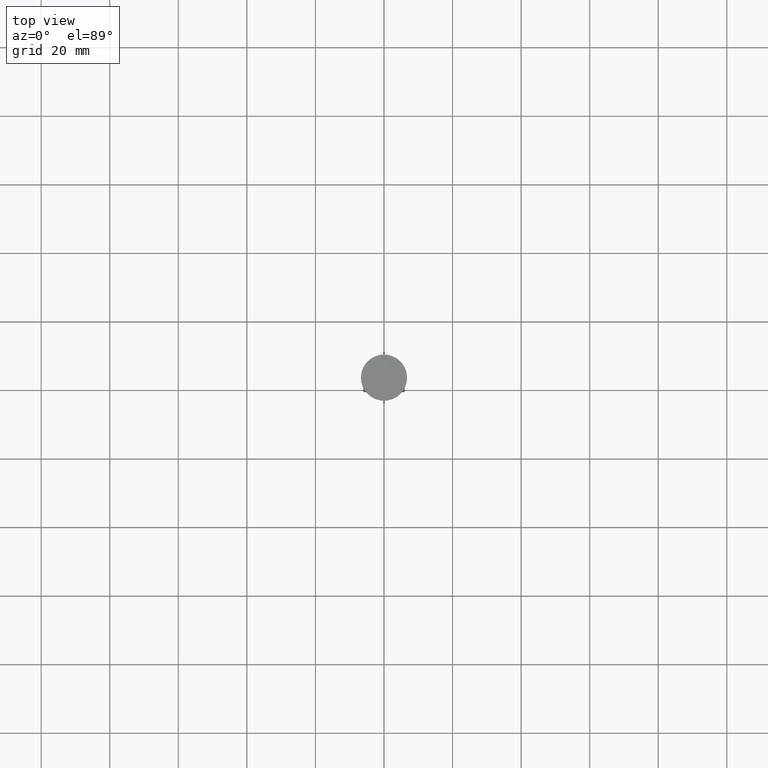
[diagram: clean part render]
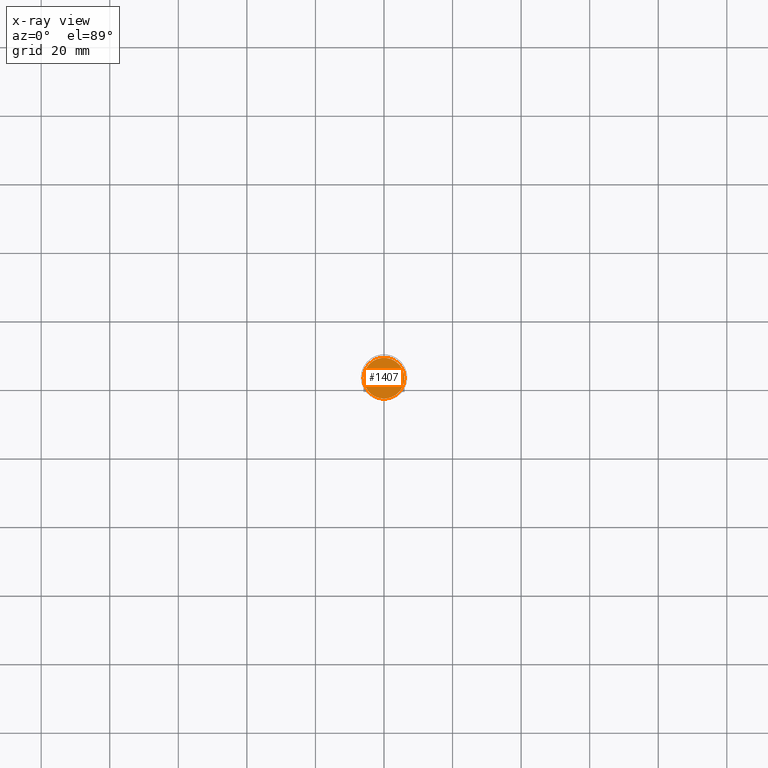
[diagram: x-ray — body ghosted, one internal face saturated and labeled with its STEP entity id]
A machine part, top view, then the same camera in x-ray: the body is ghosted and one INTERNAL B-rep face — a face not visible from any outside direction — is saturated and labeled: STEP entity #1407.
In plain terms, the highlighted planar face has unit normal (0, 0, -1).
Its self-contained STEP definition (entity closure, byte-faithful):
#15 = EDGE_LOOP ( 'NONE', ( #1779, #1756 ) ) ;
#252 = DIRECTION ( 'NONE',  ( -1.000000000000000000, 0.000000000000000000, 0.000000000000000000 ) ) ;
#291 = VERTEX_POINT ( 'NONE', #2319 ) ;
#538 = EDGE_CURVE ( 'NONE', #1473, #291, #2173, .T. ) ;
#564 = DIRECTION ( 'NONE',  ( -0.000000000000000000, -0.000000000000000000, 1.000000000000000000 ) ) ;
#581 = PLANE ( 'NONE',  #1083 ) ;
#597 = EDGE_CURVE ( 'NONE', #291, #1473, #2101, .T. ) ;
#821 = CARTESIAN_POINT ( 'NONE',  ( 0.000000000000000000, 0.000000000000000000, -10.50000000000000178 ) ) ;
#953 = FACE_OUTER_BOUND ( 'NONE', #15, .T. ) ;
#1065 = AXIS2_PLACEMENT_3D ( 'NONE', #1107, #1124, #252 ) ;
#1083 = AXIS2_PLACEMENT_3D ( 'NONE', #821, #1892, #1709 ) ;
#1107 = CARTESIAN_POINT ( 'NONE',  ( 0.000000000000000000, 0.000000000000000000, -10.50000000000000178 ) ) ;
#1124 = DIRECTION ( 'NONE',  ( -0.000000000000000000, -0.000000000000000000, 1.000000000000000000 ) ) ;
#1407 = ADVANCED_FACE ( 'NONE', ( #953 ), #581, .F. ) ;
#1473 = VERTEX_POINT ( 'NONE', #2069 ) ;
#1636 = AXIS2_PLACEMENT_3D ( 'NONE', #1886, #564, #2227 ) ;
#1709 = DIRECTION ( 'NONE',  ( -1.000000000000000000, 0.000000000000000000, -0.000000000000000000 ) ) ;
#1756 = ORIENTED_EDGE ( 'NONE', *, *, #597, .T. ) ;
#1779 = ORIENTED_EDGE ( 'NONE', *, *, #538, .T. ) ;
#1886 = CARTESIAN_POINT ( 'NONE',  ( 0.000000000000000000, 0.000000000000000000, -10.50000000000000178 ) ) ;
#1892 = DIRECTION ( 'NONE',  ( 0.000000000000000000, 0.000000000000000000, -1.000000000000000000 ) ) ;
#2069 = CARTESIAN_POINT ( 'NONE',  ( -5.950000000000002842, 0.000000000000000000, -10.50000000000000178 ) ) ;
#2101 = CIRCLE ( 'NONE', #1065, 5.950000000000002842 ) ;
#2173 = CIRCLE ( 'NONE', #1636, 5.950000000000002842 ) ;
#2227 = DIRECTION ( 'NONE',  ( -1.000000000000000000, 0.000000000000000000, 0.000000000000000000 ) ) ;
#2319 = CARTESIAN_POINT ( 'NONE',  ( 5.950000000000002842, 7.470345474798858237E-16, -10.50000000000000178 ) ) ;